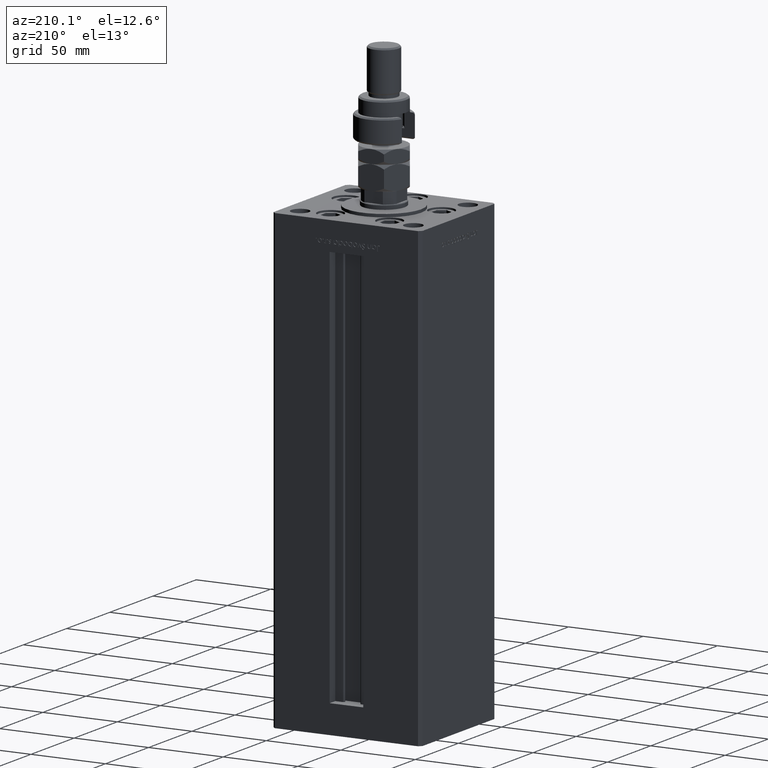
[diagram: clean part render]
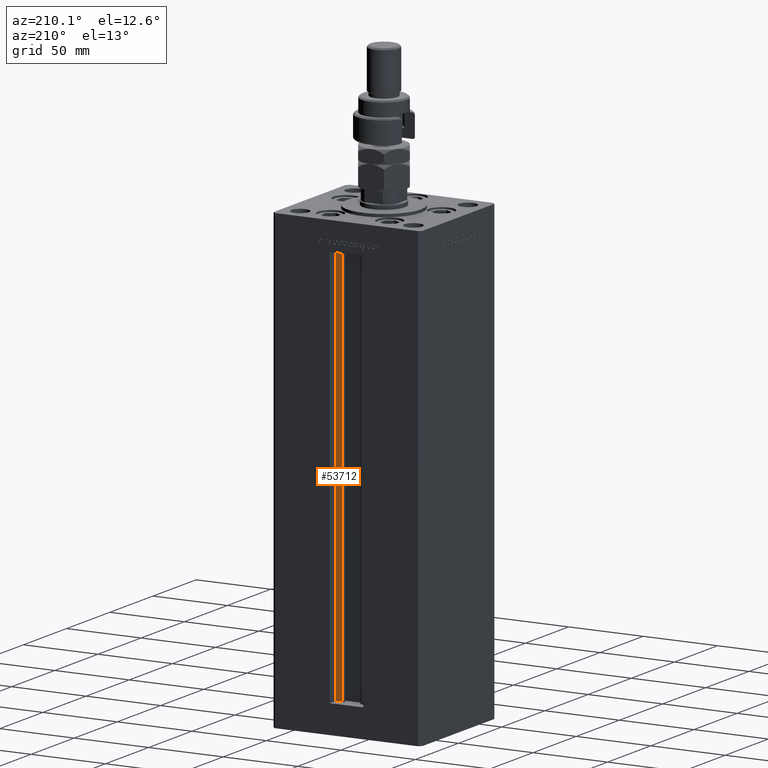
[diagram: same view with one face highlighted and labeled with its STEP entity id]
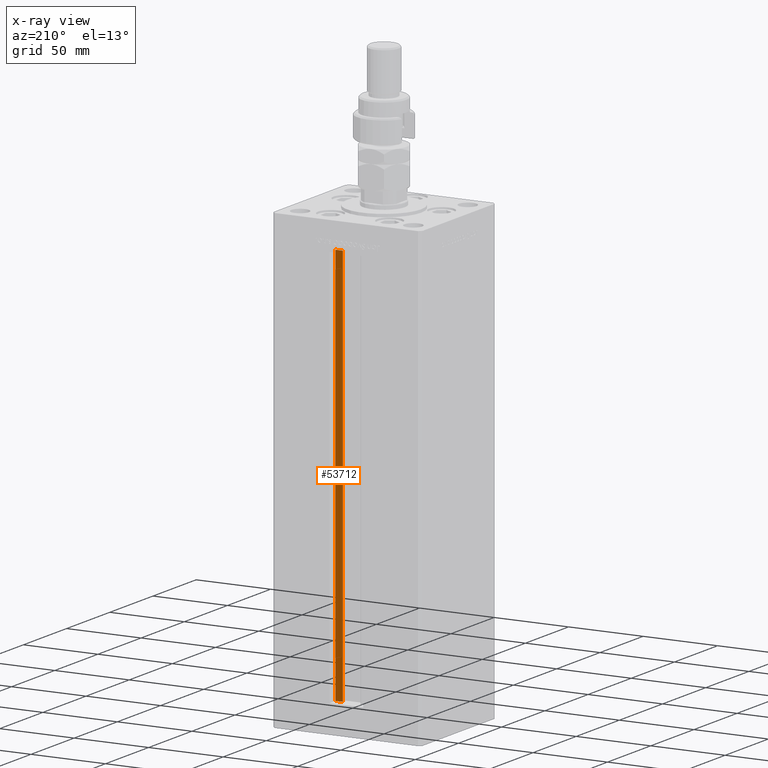
[diagram: x-ray of the same camera — body ghosted, the highlighted face saturated]
A machine part, auxiliary view. The second image highlights one B-rep face of the part: STEP entity #53712.
The next image is the same camera in x-ray: the body ghosted, the highlighted face saturated — about 0% of this face is hidden behind the body in this view.
In plain terms, the highlighted planar face has unit normal (0, -1, 0).
Its self-contained STEP definition (entity closure, byte-faithful):
#421 = CARTESIAN_POINT ( 'NONE',  ( 0.000000000000000000, 36.99999999999999289, 268.5000000000000000 ) ) ;
#3114 = VERTEX_POINT ( 'NONE', #21579 ) ;
#6163 = EDGE_LOOP ( 'NONE', ( #41480, #16256, #19904, #18428 ) ) ;
#7900 = CARTESIAN_POINT ( 'NONE',  ( 11.24999999999999822, 36.99999999999999289, 268.5000000000000000 ) ) ;
#9372 = EDGE_CURVE ( 'NONE', #25207, #49462, #35499, .T. ) ;
#11395 = CARTESIAN_POINT ( 'NONE',  ( 6.183333333333997928, 36.99999999999999289, 0.000000000000000000 ) ) ;
#14336 = DIRECTION ( 'NONE',  ( -1.000000000000000000, 0.000000000000000000, 0.000000000000000000 ) ) ;
#16256 = ORIENTED_EDGE ( 'NONE', *, *, #46380, .F. ) ;
#18428 = ORIENTED_EDGE ( 'NONE', *, *, #9372, .F. ) ;
#19904 = ORIENTED_EDGE ( 'NONE', *, *, #51214, .T. ) ;
#20204 = LINE ( 'NONE', #41305, #22785 ) ;
#21579 = CARTESIAN_POINT ( 'NONE',  ( 6.183333333333997928, 36.99999999999999289, 0.000000000000000000 ) ) ;
#22785 = VECTOR ( 'NONE', #31901, 1000.000000000000000 ) ;
#25207 = VERTEX_POINT ( 'NONE', #7900 ) ;
#26024 = LINE ( 'NONE', #35474, #46722 ) ;
#26601 = VECTOR ( 'NONE', #14336, 1000.000000000000000 ) ;
#31901 = DIRECTION ( 'NONE',  ( -0.000000000000000000, -0.000000000000000000, 1.000000000000000000 ) ) ;
#35183 = PLANE ( 'NONE',  #48096 ) ;
#35474 = CARTESIAN_POINT ( 'NONE',  ( 6.183333333333997928, 36.99999999999999289, 0.000000000000000000 ) ) ;
#35499 = LINE ( 'NONE', #421, #26601 ) ;
#36179 = CARTESIAN_POINT ( 'NONE',  ( 6.183333333333997928, 36.99999999999999289, 268.5000000000000000 ) ) ;
#36692 = VECTOR ( 'NONE', #54510, 1000.000000000000000 ) ;
#37753 = CARTESIAN_POINT ( 'NONE',  ( 6.183333333333997928, 36.99999999999999289, 0.000000000000000000 ) ) ;
#39887 = DIRECTION ( 'NONE',  ( -0.000000000000000000, -0.000000000000000000, 1.000000000000000000 ) ) ;
#41305 = CARTESIAN_POINT ( 'NONE',  ( 11.24999999999999822, 36.99999999999999289, 0.000000000000000000 ) ) ;
#41480 = ORIENTED_EDGE ( 'NONE', *, *, #51056, .F. ) ;
#42174 = FACE_OUTER_BOUND ( 'NONE', #6163, .T. ) ;
#46380 = EDGE_CURVE ( 'NONE', #3114, #47338, #49772, .T. ) ;
#46722 = VECTOR ( 'NONE', #39887, 1000.000000000000000 ) ;
#47338 = VERTEX_POINT ( 'NONE', #54869 ) ;
#48096 = AXIS2_PLACEMENT_3D ( 'NONE', #37753, #54696, #52127 ) ;
#49462 = VERTEX_POINT ( 'NONE', #36179 ) ;
#49772 = LINE ( 'NONE', #11395, #36692 ) ;
#51056 = EDGE_CURVE ( 'NONE', #47338, #25207, #20204, .T. ) ;
#51214 = EDGE_CURVE ( 'NONE', #3114, #49462, #26024, .T. ) ;
#52127 = DIRECTION ( 'NONE',  ( 0.000000000000000000, -0.000000000000000000, -1.000000000000000000 ) ) ;
#53712 = ADVANCED_FACE ( 'NONE', ( #42174 ), #35183, .F. ) ;
#54510 = DIRECTION ( 'NONE',  ( 1.000000000000000000, 0.000000000000000000, 0.000000000000000000 ) ) ;
#54696 = DIRECTION ( 'NONE',  ( 0.000000000000000000, -1.000000000000000000, 0.000000000000000000 ) ) ;
#54869 = CARTESIAN_POINT ( 'NONE',  ( 11.24999999999999822, 36.99999999999999289, 0.000000000000000000 ) ) ;